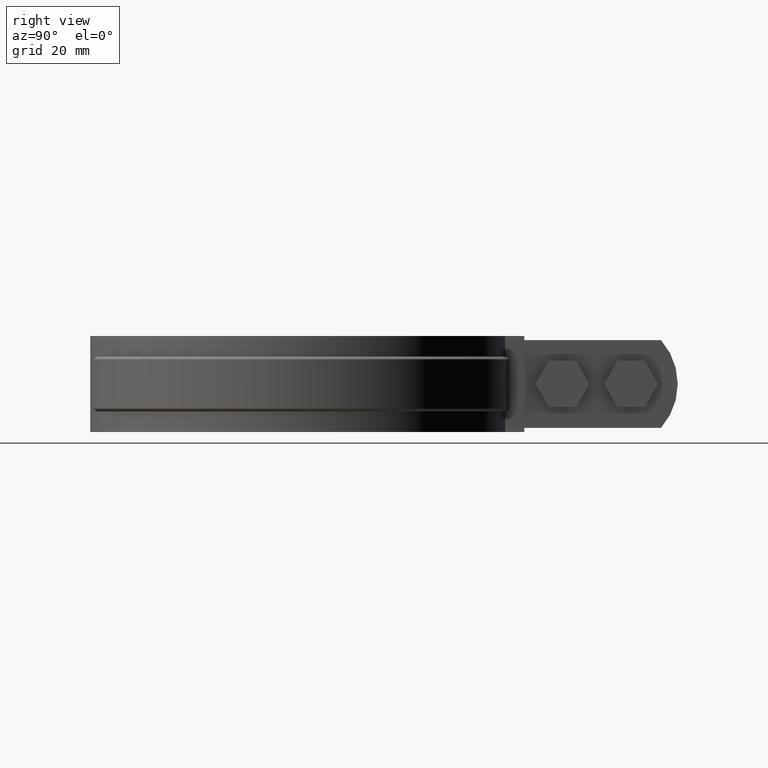
[diagram: clean part render]
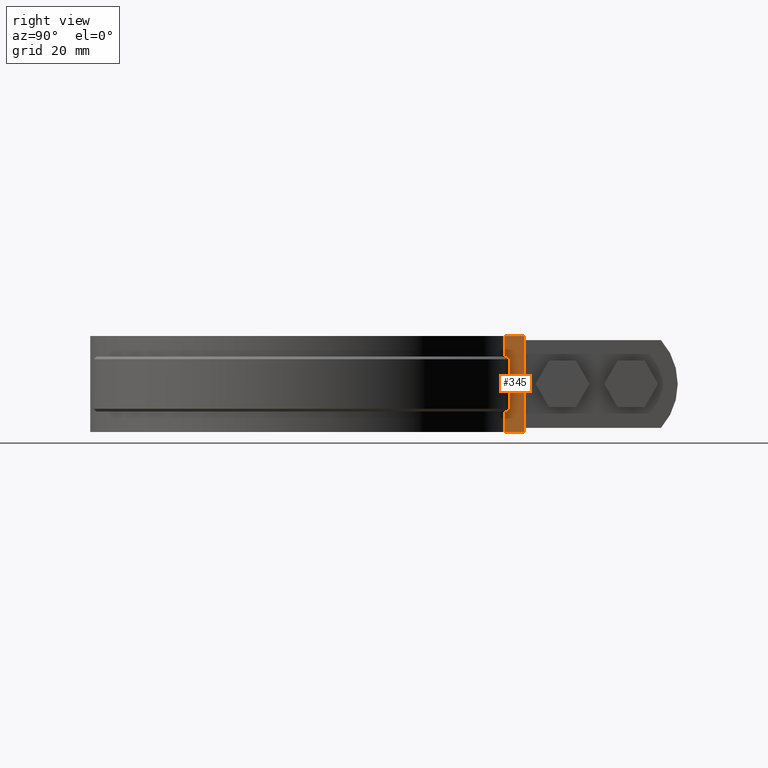
[diagram: same view with one face highlighted and labeled with its STEP entity id]
A machine part, right view. The second image highlights one B-rep face of the part: STEP entity #345.
In plain terms, the highlighted planar face has unit normal (-1, 0, 0).
Its self-contained STEP definition (entity closure, byte-faithful):
#345 = ADVANCED_FACE( '', ( #544 ), #545, .F. );
#544 = FACE_OUTER_BOUND( '', #1257, .T. );
#545 = PLANE( '', #1258 );
#1257 = EDGE_LOOP( '', ( #2893, #2894, #2895, #2896, #2897, #2898, #2899, #2900, #2901, #2902 ) );
#1258 = AXIS2_PLACEMENT_3D( '', #2903, #2904, #2905 );
#2893 = ORIENTED_EDGE( '', *, *, #4696, .F. );
#2894 = ORIENTED_EDGE( '', *, *, #4697, .T. );
#2895 = ORIENTED_EDGE( '', *, *, #4698, .T. );
#2896 = ORIENTED_EDGE( '', *, *, #4699, .F. );
#2897 = ORIENTED_EDGE( '', *, *, #4700, .F. );
#2898 = ORIENTED_EDGE( '', *, *, #4701, .T. );
#2899 = ORIENTED_EDGE( '', *, *, #4702, .T. );
#2900 = ORIENTED_EDGE( '', *, *, #4703, .F. );
#2901 = ORIENTED_EDGE( '', *, *, #4704, .F. );
#2902 = ORIENTED_EDGE( '', *, *, #4705, .T. );
#2903 = CARTESIAN_POINT( '', ( 8.39999999999999, 82.4000000000000, -33.5000000000000 ) );
#2904 = DIRECTION( '', ( -1.00000000000000, 5.55111512312578E-017, 0.000000000000000 ) );
#2905 = DIRECTION( '', ( 5.55111512312578E-017, 1.00000000000000, 0.000000000000000 ) );
#4696 = EDGE_CURVE( '', #5146, #5147, #5148, .T. );
#4697 = EDGE_CURVE( '', #5146, #5149, #5150, .T. );
#4698 = EDGE_CURVE( '', #5149, #5151, #5152, .T. );
#4699 = EDGE_CURVE( '', #5153, #5151, #5154, .T. );
#4700 = EDGE_CURVE( '', #5155, #5153, #5156, .T. );
#4701 = EDGE_CURVE( '', #5155, #5157, #5158, .T. );
#4702 = EDGE_CURVE( '', #5157, #5159, #5160, .T. );
#4703 = EDGE_CURVE( '', #5161, #5159, #5162, .T. );
#4704 = EDGE_CURVE( '', #5163, #5161, #5164, .T. );
#4705 = EDGE_CURVE( '', #5163, #5147, #5165, .T. );
#5146 = VERTEX_POINT( '', #6713 );
#5147 = VERTEX_POINT( '', #6714 );
#5148 = LINE( '', #6715, #6716 );
#5149 = VERTEX_POINT( '', #6717 );
#5150 = B_SPLINE_CURVE_WITH_KNOTS( '', 3, ( #6718, #6719, #6720, #6721 ), .UNSPECIFIED., .F., .F., ( 4, 4 ), ( 1.96261557335472E-017, 0.00141847679147928 ), .UNSPECIFIED. );
#5151 = VERTEX_POINT( '', #6722 );
#5152 = LINE( '', #6723, #6724 );
#5153 = VERTEX_POINT( '', #6725 );
#5154 = LINE( '', #6726, #6727 );
#5155 = VERTEX_POINT( '', #6728 );
#5156 = LINE( '', #6729, #6730 );
#5157 = VERTEX_POINT( '', #6731 );
#5158 = LINE( '', #6732, #6733 );
#5159 = VERTEX_POINT( '', #6734 );
#5160 = LINE( '', #6735, #6736 );
#5161 = VERTEX_POINT( '', #6737 );
#5162 = LINE( '', #6738, #6739 );
#5163 = VERTEX_POINT( '', #6740 );
#5164 = LINE( '', #6741, #6742 );
#5165 = B_SPLINE_CURVE_WITH_KNOTS( '', 3, ( #6743, #6744, #6745, #6746 ), .UNSPECIFIED., .F., .F., ( 4, 4 ), ( 0.000000000000000, 0.00141847679147930 ), .UNSPECIFIED. );
#6713 = CARTESIAN_POINT( '', ( 8.39999999999995, 76.9428359238208, -25.0000000000000 ) );
#6714 = CARTESIAN_POINT( '', ( 8.39999999999995, 76.9428359238208, -7.00000000000001 ) );
#6715 = CARTESIAN_POINT( '', ( 8.39999999999995, 76.9428359238208, -26.0000000000000 ) );
#6716 = VECTOR( '', #8512, 1000.00000000000 );
#6717 = CARTESIAN_POINT( '', ( 8.40000000000000, 75.9368158405394, -26.0000000000000 ) );
#6718 = CARTESIAN_POINT( '', ( 8.39999999999995, 76.9428359238207, -25.0000000000000 ) );
#6719 = CARTESIAN_POINT( '', ( 8.39999999999995, 76.6075088977390, -25.3333464127730 ) );
#6720 = CARTESIAN_POINT( '', ( 8.39999999999999, 76.2721690406654, -25.6666799188547 ) );
#6721 = CARTESIAN_POINT( '', ( 8.39999999999999, 75.9368158405394, -26.0000000000000 ) );
#6722 = CARTESIAN_POINT( '', ( 8.40000000000000, 75.4337457640809, -26.0000000000000 ) );
#6723 = CARTESIAN_POINT( '', ( 8.40000000000000, 76.9428359238207, -26.0000000000000 ) );
#6724 = VECTOR( '', #8513, 1000.00000000000 );
#6725 = CARTESIAN_POINT( '', ( 8.40000000000001, 75.4337457640809, -33.5000000000000 ) );
#6726 = CARTESIAN_POINT( '', ( 8.40000000000001, 75.4337457640809, -33.5000000000000 ) );
#6727 = VECTOR( '', #8514, 1000.00000000000 );
#6728 = CARTESIAN_POINT( '', ( 8.39999999999999, 82.4000000000000, -33.5000000000000 ) );
#6729 = CARTESIAN_POINT( '', ( 8.39999999999999, 82.4000000000000, -33.5000000000000 ) );
#6730 = VECTOR( '', #8515, 1000.00000000000 );
#6731 = CARTESIAN_POINT( '', ( 8.39999999999999, 82.4000000000000, 1.50000000000000 ) );
#6732 = CARTESIAN_POINT( '', ( 8.39999999999999, 82.4000000000000, -33.5000000000000 ) );
#6733 = VECTOR( '', #8516, 1000.00000000000 );
#6734 = CARTESIAN_POINT( '', ( 8.40000000000001, 75.4337457640809, 1.50000000000000 ) );
#6735 = CARTESIAN_POINT( '', ( 8.39999999999999, 82.4000000000000, 1.50000000000000 ) );
#6736 = VECTOR( '', #8517, 1000.00000000000 );
#6737 = CARTESIAN_POINT( '', ( 8.40000000000001, 75.4337457640809, -6.00000000000000 ) );
#6738 = CARTESIAN_POINT( '', ( 8.40000000000001, 75.4337457640809, -33.5000000000000 ) );
#6739 = VECTOR( '', #8518, 1000.00000000000 );
#6740 = CARTESIAN_POINT( '', ( 8.40000000000000, 75.9368158405394, -6.00000000000000 ) );
#6741 = CARTESIAN_POINT( '', ( 8.40000000000000, 76.9428359238207, -6.00000000000000 ) );
#6742 = VECTOR( '', #8519, 1000.00000000000 );
#6743 = CARTESIAN_POINT( '', ( 8.40000000000000, 75.9368158405394, -6.00000000000000 ) );
#6744 = CARTESIAN_POINT( '', ( 8.40000000000000, 76.2721690406654, -6.33332008114534 ) );
#6745 = CARTESIAN_POINT( '', ( 8.39999999999999, 76.6075088977390, -6.66665358722698 ) );
#6746 = CARTESIAN_POINT( '', ( 8.39999999999999, 76.9428359238207, -7.00000000000000 ) );
#8512 = DIRECTION( '', ( 0.000000000000000, 0.000000000000000, 1.00000000000000 ) );
#8513 = DIRECTION( '', ( 0.000000000000000, -1.00000000000000, 0.000000000000000 ) );
#8514 = DIRECTION( '', ( 0.000000000000000, 0.000000000000000, 1.00000000000000 ) );
#8515 = DIRECTION( '', ( -5.55111512312578E-017, -1.00000000000000, 0.000000000000000 ) );
#8516 = DIRECTION( '', ( 0.000000000000000, 0.000000000000000, 1.00000000000000 ) );
#8517 = DIRECTION( '', ( -5.55111512312578E-017, -1.00000000000000, 0.000000000000000 ) );
#8518 = DIRECTION( '', ( 0.000000000000000, 0.000000000000000, 1.00000000000000 ) );
#8519 = DIRECTION( '', ( 0.000000000000000, -1.00000000000000, 0.000000000000000 ) );